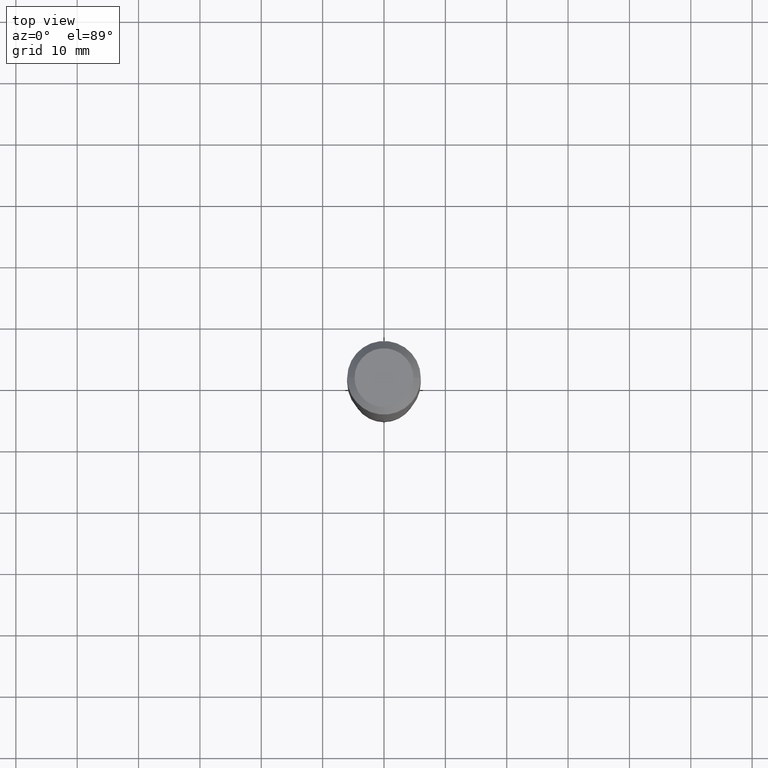
[diagram: clean part render]
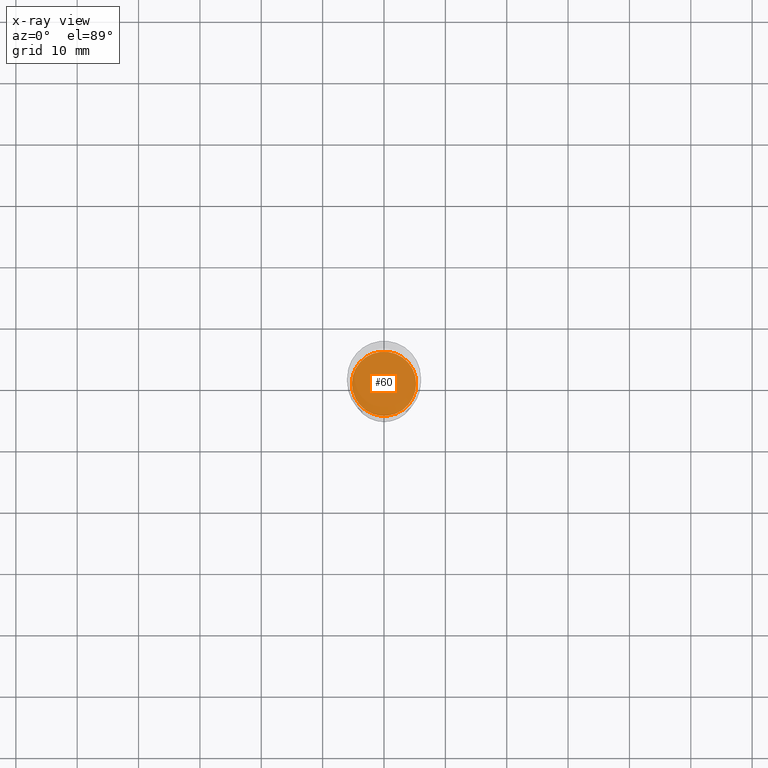
[diagram: x-ray — body ghosted, one internal face saturated and labeled with its STEP entity id]
A machine part, top view, then the same camera in x-ray: the body is ghosted and one INTERNAL B-rep face — a face not visible from any outside direction — is saturated and labeled: STEP entity #60.
In plain terms, the highlighted planar face has unit normal (-0, 0, 1).
Its self-contained STEP definition (entity closure, byte-faithful):
#35 = CIRCLE ( 'NONE', #182, 0.2062000000000000222 ) ;
#47 = DIRECTION ( 'NONE',  ( 1.000000000000000000, -6.982962677686268288E-15, 0.000000000000000000 ) ) ;
#52 = CARTESIAN_POINT ( 'NONE',  ( -0.2062000000000000222, -6.436227106561674597E-15, -2.263799999999999812 ) ) ;
#53 = AXIS2_PLACEMENT_3D ( 'NONE', #430, #160, #315 ) ;
#60 = ADVANCED_FACE ( 'NONE', ( #122 ), #312, .F. ) ;
#64 = EDGE_LOOP ( 'NONE', ( #374, #76 ) ) ;
#76 = ORIENTED_EDGE ( 'NONE', *, *, #311, .F. ) ;
#85 = EDGE_CURVE ( 'NONE', #187, #97, #35, .T. ) ;
#97 = VERTEX_POINT ( 'NONE', #52 ) ;
#122 = FACE_OUTER_BOUND ( 'NONE', #64, .T. ) ;
#130 = DIRECTION ( 'NONE',  ( 1.000000000000000000, -6.982962677686268288E-15, 0.000000000000000000 ) ) ;
#160 = DIRECTION ( 'NONE',  ( -2.438088387897960049E-29, 3.491481338843145188E-15, 1.000000000000000000 ) ) ;
#161 = CARTESIAN_POINT ( 'NONE',  ( 5.536052283441911489E-29, -7.904015454873111947E-15, -2.263799999999999812 ) ) ;
#182 = AXIS2_PLACEMENT_3D ( 'NONE', #350, #475, #130 ) ;
#187 = VERTEX_POINT ( 'NONE', #362 ) ;
#226 = CIRCLE ( 'NONE', #431, 0.2062000000000000222 ) ;
#311 = EDGE_CURVE ( 'NONE', #97, #187, #226, .T. ) ;
#312 = PLANE ( 'NONE',  #53 ) ;
#315 = DIRECTION ( 'NONE',  ( 1.000000000000000000, -6.982962677686265922E-15, 4.876176775795935793E-29 ) ) ;
#350 = CARTESIAN_POINT ( 'NONE',  ( 5.536052283441911489E-29, -7.904015454873111947E-15, -2.263799999999999812 ) ) ;
#362 = CARTESIAN_POINT ( 'NONE',  ( 0.2062000000000000222, -9.343902359012020155E-15, -2.263799999999999812 ) ) ;
#374 = ORIENTED_EDGE ( 'NONE', *, *, #85, .F. ) ;
#395 = DIRECTION ( 'NONE',  ( -2.445468806185136597E-29, 3.491481338843145583E-15, 1.000000000000000000 ) ) ;
#430 = CARTESIAN_POINT ( 'NONE',  ( 5.536052283441911489E-29, -7.904015454873111947E-15, -2.263799999999999812 ) ) ;
#431 = AXIS2_PLACEMENT_3D ( 'NONE', #161, #395, #47 ) ;
#475 = DIRECTION ( 'NONE',  ( -2.445468806185136597E-29, 3.491481338843145583E-15, 1.000000000000000000 ) ) ;